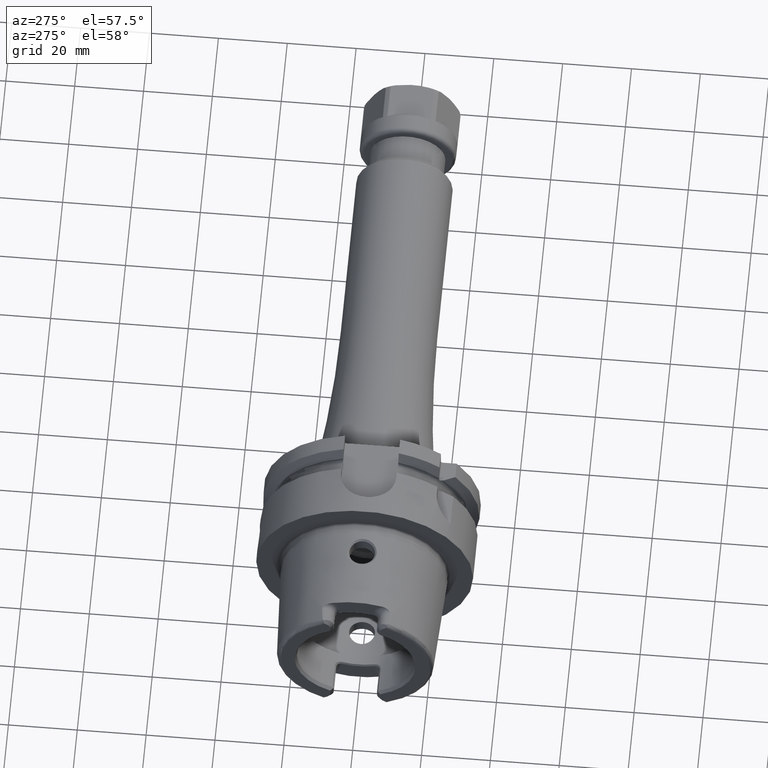
[diagram: clean part render]
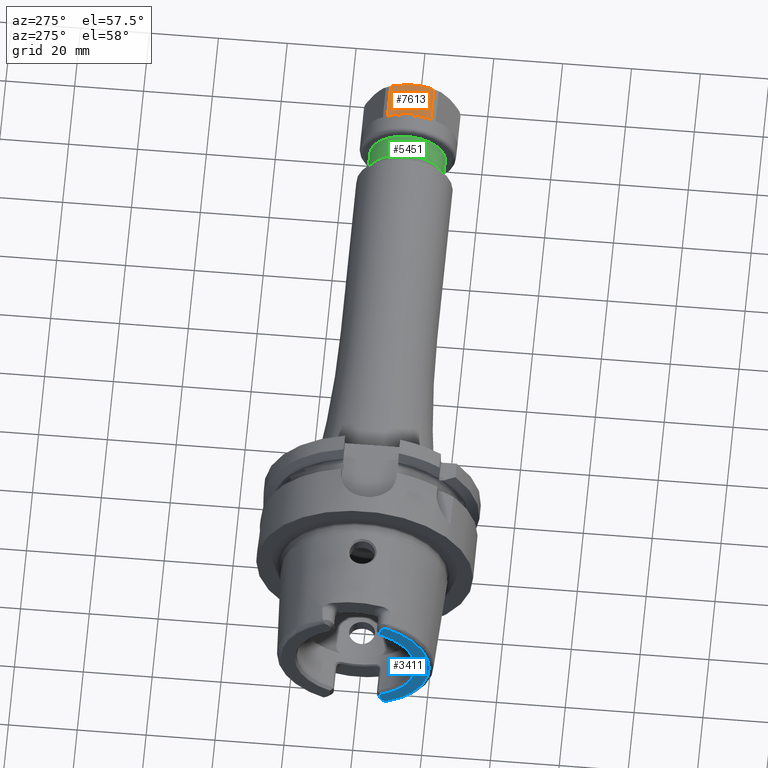
[diagram: same view with three faces highlighted in distinct colors, each labeled with its STEP entity id]
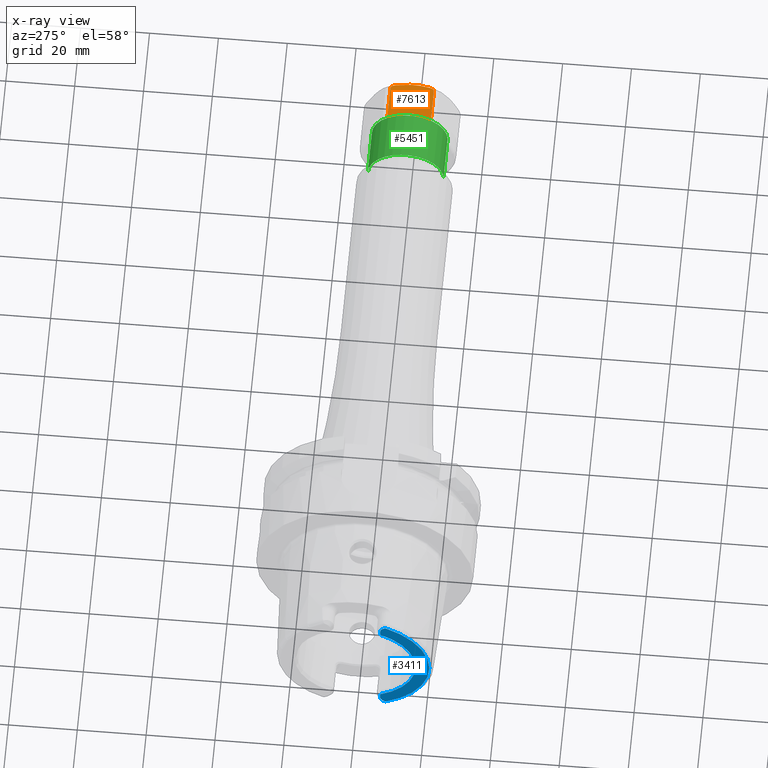
[diagram: x-ray of the same camera — body ghosted, the three highlighted faces saturated]
A machine part, auxiliary view with three faces highlighted in distinct colors.
The next image is the same camera in x-ray (body ghosted, the three faces saturated) — at least one of them is partly hidden behind the body in this view.
Their STEP definitions:

[orange] entity #7613 — the highlighted planar face has unit normal (0, 0, -1).
#6811=CARTESIAN_POINT('',(1.628445554338E1,-4.758216577669E0,1.25E1));
#6812=CARTESIAN_POINT('',(1.625780514735E1,-4.887968523483E0,1.25E1));
#6813=CARTESIAN_POINT('',(1.619635457926E1,-5.141602008187E0,1.25E1));
#6814=CARTESIAN_POINT('',(1.606561669937E1,-5.515629625230E0,1.25E1));
#6815=CARTESIAN_POINT('',(1.589737600801E1,-5.841380073054E0,1.25E1));
#6816=CARTESIAN_POINT('',(1.569295978880E1,-6.098496038599E0,1.25E1));
#6817=CARTESIAN_POINT('',(1.545738513995E1,-6.265053289239E0,1.25E1));
#6818=CARTESIAN_POINT('',(1.528945671766E1,-6.304760106459E0,1.25E1));
#6819=CARTESIAN_POINT('',(1.520192378865E1,-6.304760106459E0,1.25E1));
#6821=CARTESIAN_POINT('',(1.520192378865E1,6.304760106459E0,1.25E1));
#6822=CARTESIAN_POINT('',(1.529096662636E1,6.304760106459E0,1.25E1));
#6823=CARTESIAN_POINT('',(1.546146335283E1,6.263924243604E0,1.25E1));
#6824=CARTESIAN_POINT('',(1.570142638899E1,6.090799069305E0,1.25E1));
#6825=CARTESIAN_POINT('',(1.590512360841E1,5.828820593103E0,1.25E1));
#6826=CARTESIAN_POINT('',(1.607010427330E1,5.504238892291E0,1.25E1));
#6827=CARTESIAN_POINT('',(1.619774346523E1,5.136026796860E0,1.25E1));
#6828=CARTESIAN_POINT('',(1.625821277607E1,4.885983914320E0,1.25E1));
#6829=CARTESIAN_POINT('',(1.628445554338E1,4.758216577669E0,1.25E1));
#6964=CARTESIAN_POINT('',(1.628445554338E1,4.758216577669E0,1.25E1));
#6965=CARTESIAN_POINT('',(1.644888995402E1,3.957639929005E0,1.25E1));
#6966=CARTESIAN_POINT('',(1.670318968294E1,2.364269791047E0,1.25E1));
#6967=CARTESIAN_POINT('',(1.683288207547E1,-5.894560252867E-4,1.25E1));
#6968=CARTESIAN_POINT('',(1.670310415631E1,-2.364813039561E0,1.25E1));
#6969=CARTESIAN_POINT('',(1.644884551611E1,-3.957856282460E0,1.25E1));
#6970=CARTESIAN_POINT('',(1.628445554338E1,-4.758216577669E0,1.25E1));
#7092=CARTESIAN_POINT('',(6.999998791690E0,1.985136949503E-4,1.250497818744E1));
#7093=CARTESIAN_POINT('',(6.999995386559E0,1.083553461564E-1,1.250497818744E1));
#7094=CARTESIAN_POINT('',(7.011782444677E0,3.323389433546E-1,1.249768961517E1));
#7095=CARTESIAN_POINT('',(6.991282370716E0,6.947576581843E-1,1.250061906576E1));
#7096=CARTESIAN_POINT('',(6.965721899361E0,1.081326132470E0,1.249983412178E1));
#7097=CARTESIAN_POINT('',(6.922876192133E0,1.498035903408E0,1.250004444711E1));
#7098=CARTESIAN_POINT('',(6.861885981566E0,1.948281362830E0,1.249998808976E1));
#7099=CARTESIAN_POINT('',(6.778309802838E0,2.434572650865E0,1.250000319384E1));
#7100=CARTESIAN_POINT('',(6.667918248966E0,2.960298770043E0,1.249999913487E1));
#7101=CARTESIAN_POINT('',(6.525149902043E0,3.530593918696E0,1.250000026669E1));
#7102=CARTESIAN_POINT('',(6.344630001608E0,4.147368678958E0,1.249999979838E1));
#7103=CARTESIAN_POINT('',(6.120965968917E0,4.812010958299E0,1.250000053980E1));
#7104=CARTESIAN_POINT('',(5.848032343460E0,5.527653239183E0,1.249999804241E1));
#7105=CARTESIAN_POINT('',(5.629243339886E0,6.040163160491E0,1.250000420784E1));
#7106=CARTESIAN_POINT('',(5.510095954746E0,6.304759140730E0,1.250000420784E1));
#7108=DIRECTION('',(9.999999999999E-1,9.964366215769E-8,-4.341640402664E-7));
#7109=VECTOR('',#7108,9.691827833902E0);
#7110=CARTESIAN_POINT('',(5.510095954746E0,6.304759140730E0,1.250000420784E1));
#7111=LINE('',#7110,#7109);
#7112=DIRECTION('',(-1.E0,0.E0,0.E0));
#7113=VECTOR('',#7112,9.691824900384E0);
#7114=CARTESIAN_POINT('',(1.520192378865E1,-6.304760106459E0,1.25E1));
#7115=LINE('',#7114,#7113);
#7116=CARTESIAN_POINT('',(5.510098888263E0,-6.304760106459E0,1.25E1));
#7117=CARTESIAN_POINT('',(5.628608269067E0,-6.041581193405E0,1.25E1));
#7118=CARTESIAN_POINT('',(5.846410978598E0,-5.531542850544E0,1.249999999528E1));
#7119=CARTESIAN_POINT('',(6.118668645789E0,-4.818319414009E0,1.250000001653E1));
#7120=CARTESIAN_POINT('',(6.342154539409E0,-4.155168896739E0,1.249999993859E1));
#7121=CARTESIAN_POINT('',(6.522846521565E0,-3.539040019302E0,1.250000022912E1));
#7122=CARTESIAN_POINT('',(6.666026914419E0,-2.968541134184E0,1.249999914493E1));
#7123=CARTESIAN_POINT('',(6.776957979542E0,-2.441689317017E0,1.250000319115E1));
#7124=CARTESIAN_POINT('',(6.860833699321E0,-1.955099057778E0,1.249998809048E1));
#7125=CARTESIAN_POINT('',(6.922079179828E0,-1.504758646512E0,1.250004444692E1));
#7126=CARTESIAN_POINT('',(6.965227124505E0,-1.087199393790E0,1.249983412183E1));
#7127=CARTESIAN_POINT('',(6.991082238877E0,-6.988464250822E-1,
1.250061906575E1));
#7128=CARTESIAN_POINT('',(7.011784163695E0,-3.332410705653E-1,
1.249768961517E1));
#7129=CARTESIAN_POINT('',(7.000002200654E0,-1.080800986362E-1,
1.250497818744E1));
#7130=CARTESIAN_POINT('',(6.999998791690E0,1.985136949503E-4,1.250497818744E1));
#7179=VERTEX_POINT('',#6964);
#7180=VERTEX_POINT('',#6970);
#7191=VERTEX_POINT('',#6819);
#7192=VERTEX_POINT('',#6821);
#7221=CARTESIAN_POINT('',(5.510019594413E0,-6.304795814642E0,1.250007080131E1));
#7222=CARTESIAN_POINT('',(5.510019594413E0,6.304795289710E0,1.250006976046E1));
#7223=VERTEX_POINT('',#7221);
#7224=VERTEX_POINT('',#7222);
#7226=VERTEX_POINT('',#7130);
#7597=CARTESIAN_POINT('',(1.78E1,-7.216878364870E0,1.25E1));
#7598=DIRECTION('',(0.E0,0.E0,-1.E0));
#7599=DIRECTION('',(0.E0,1.E0,0.E0));
#7600=AXIS2_PLACEMENT_3D('',#7597,#7598,#7599);
#7601=PLANE('',#7600);
#7603=ORIENTED_EDGE('',*,*,#7602,.T.);
#7604=ORIENTED_EDGE('',*,*,#7548,.T.);
#7605=ORIENTED_EDGE('',*,*,#7404,.T.);
#7606=ORIENTED_EDGE('',*,*,#7497,.T.);
#7607=ORIENTED_EDGE('',*,*,#7392,.T.);
#7608=ORIENTED_EDGE('',*,*,#7552,.T.);
#7610=ORIENTED_EDGE('',*,*,#7609,.T.);
#7611=EDGE_LOOP('',(#7603,#7604,#7605,#7606,#7607,#7608,#7610));
#7612=FACE_OUTER_BOUND('',#7611,.F.);
#7613=ADVANCED_FACE('',(#7612),#7601,.F.);
#6820=B_SPLINE_CURVE_WITH_KNOTS('',3,(#6811,#6812,#6813,#6814,#6815,#6816,#6817,
#6818,#6819),.UNSPECIFIED.,.F.,.F.,(4,1,1,1,1,1,4),(0.E0,1.666666666667E-1,
3.333333333333E-1,5.E-1,6.666666666667E-1,8.333333333333E-1,1.E0),
.UNSPECIFIED.);
#6830=B_SPLINE_CURVE_WITH_KNOTS('',3,(#6821,#6822,#6823,#6824,#6825,#6826,#6827,
#6828,#6829),.UNSPECIFIED.,.F.,.F.,(4,1,1,1,1,1,4),(0.E0,1.666666666667E-1,
3.333333333333E-1,5.E-1,6.666666666667E-1,8.333333333333E-1,1.E0),
.UNSPECIFIED.);
#6971=B_SPLINE_CURVE_WITH_KNOTS('',3,(#6964,#6965,#6966,#6967,#6968,#6969,
#6970),.UNSPECIFIED.,.F.,.F.,(4,1,1,1,4),(0.E0,2.5E-1,5.E-1,7.5E-1,1.E0),
.UNSPECIFIED.);
#7107=B_SPLINE_CURVE_WITH_KNOTS('',3,(#7092,#7093,#7094,#7095,#7096,#7097,#7098,
#7099,#7100,#7101,#7102,#7103,#7104,#7105,#7106),.UNSPECIFIED.,.F.,.F.,(4,1,1,1,
1,1,1,1,1,1,1,1,4),(0.E0,8.333333333333E-2,1.666666666667E-1,2.5E-1,
3.333333333333E-1,4.166666666667E-1,5.E-1,5.833333333333E-1,6.666666666667E-1,
7.5E-1,8.333333333333E-1,9.166666666667E-1,1.E0),.UNSPECIFIED.);
#7131=B_SPLINE_CURVE_WITH_KNOTS('',3,(#7116,#7117,#7118,#7119,#7120,#7121,#7122,
#7123,#7124,#7125,#7126,#7127,#7128,#7129,#7130),.UNSPECIFIED.,.F.,.F.,(4,1,1,1,
1,1,1,1,1,1,1,1,4),(0.E0,8.333333333333E-2,1.666666666667E-1,2.5E-1,
3.333333333333E-1,4.166666666667E-1,5.E-1,5.833333333333E-1,6.666666666667E-1,
7.5E-1,8.333333333333E-1,9.166666666667E-1,1.E0),.UNSPECIFIED.);
#7392=EDGE_CURVE('',#7180,#7191,#6820,.T.);
#7404=EDGE_CURVE('',#7192,#7179,#6830,.T.);
#7497=EDGE_CURVE('',#7179,#7180,#6971,.T.);
#7548=EDGE_CURVE('',#7224,#7192,#7111,.T.);
#7552=EDGE_CURVE('',#7191,#7223,#7115,.T.);
#7602=EDGE_CURVE('',#7226,#7224,#7107,.T.);
#7609=EDGE_CURVE('',#7223,#7226,#7131,.T.);

[blue] entity #3411 — the highlighted planar face has unit normal (1, 0, 0).
#231=CARTESIAN_POINT('',(-3.2E1,0.E0,0.E0));
#232=DIRECTION('',(-1.E0,0.E0,0.E0));
#233=DIRECTION('',(0.E0,-4.056746540583E-1,-9.140175463604E-1));
#234=AXIS2_PLACEMENT_3D('',#231,#232,#233);
#315=DIRECTION('',(0.E0,0.E0,-1.E0));
#316=VECTOR('',#315,1.666552168805E0);
#317=CARTESIAN_POINT('',(-3.2E1,-7.27E0,-1.600344783120E1));
#318=LINE('',#317,#316);
#319=DIRECTION('',(0.E0,0.E0,1.E0));
#320=VECTOR('',#319,1.666552168805E0);
#321=CARTESIAN_POINT('',(-3.2E1,-7.27E0,1.600344783120E1));
#322=LINE('',#321,#320);
#323=CARTESIAN_POINT('',(-3.2E1,-9.27E0,1.767E1));
#324=DIRECTION('',(1.E0,0.E0,0.E0));
#325=DIRECTION('',(0.E0,1.E0,1.065814103640E-14));
#326=AXIS2_PLACEMENT_3D('',#323,#324,#325);
#328=DIRECTION('',(0.E0,8.373245684230E-1,-5.467061067112E-1));
#329=VECTOR('',#328,6.882400885957E-1);
#330=CARTESIAN_POINT('',(-3.2E1,-8.752868121732E0,1.972091419616E1));
#331=LINE('',#330,#329);
#332=DIRECTION('',(0.E0,8.373245684230E-1,5.467061067112E-1));
#333=VECTOR('',#332,6.882400885957E-1);
#334=CARTESIAN_POINT('',(-3.2E1,-8.752868121732E0,-1.972091419616E1));
#335=LINE('',#334,#333);
#336=CARTESIAN_POINT('',(-3.2E1,-9.27E0,-1.767E1));
#337=DIRECTION('',(-1.E0,0.E0,0.E0));
#338=DIRECTION('',(0.E0,1.E0,0.E0));
#339=AXIS2_PLACEMENT_3D('',#336,#337,#338);
#410=CARTESIAN_POINT('',(-3.2E1,0.E0,0.E0));
#411=DIRECTION('',(1.E0,0.E0,0.E0));
#412=DIRECTION('',(0.E0,-4.136004510727E-1,9.104584926686E-1));
#413=AXIS2_PLACEMENT_3D('',#410,#411,#412);
#2795=CARTESIAN_POINT('',(-3.2E1,-7.27E0,1.600344783120E1));
#2796=CARTESIAN_POINT('',(-3.2E1,-7.27E0,1.767E1));
#2797=VERTEX_POINT('',#2795);
#2798=VERTEX_POINT('',#2796);
#2799=CARTESIAN_POINT('',(-3.2E1,-8.176587786578E0,1.934464913685E1));
#2800=VERTEX_POINT('',#2799);
#2801=CARTESIAN_POINT('',(-3.2E1,-8.752868121732E0,1.972091419616E1));
#2802=VERTEX_POINT('',#2801);
#2892=CARTESIAN_POINT('',(-3.2E1,-7.27E0,-1.600344783120E1));
#2893=CARTESIAN_POINT('',(-3.2E1,-7.27E0,-1.767E1));
#2894=VERTEX_POINT('',#2892);
#2895=VERTEX_POINT('',#2893);
#2896=CARTESIAN_POINT('',(-3.2E1,-8.176587786578E0,-1.934464913685E1));
#2897=VERTEX_POINT('',#2896);
#2898=CARTESIAN_POINT('',(-3.2E1,-8.752868121732E0,-1.972091419616E1));
#2899=VERTEX_POINT('',#2898);
#3389=CARTESIAN_POINT('',(-3.2E1,0.E0,0.E0));
#3390=DIRECTION('',(1.E0,0.E0,0.E0));
#3391=DIRECTION('',(0.E0,-1.E0,0.E0));
#3392=AXIS2_PLACEMENT_3D('',#3389,#3390,#3391);
#3393=PLANE('',#3392);
#3395=ORIENTED_EDGE('',*,*,#3394,.F.);
#3397=ORIENTED_EDGE('',*,*,#3396,.F.);
#3399=ORIENTED_EDGE('',*,*,#3398,.T.);
#3401=ORIENTED_EDGE('',*,*,#3400,.T.);
#3403=ORIENTED_EDGE('',*,*,#3402,.F.);
#3404=ORIENTED_EDGE('',*,*,#3336,.F.);
#3406=ORIENTED_EDGE('',*,*,#3405,.T.);
#3408=ORIENTED_EDGE('',*,*,#3407,.F.);
#3409=EDGE_LOOP('',(#3395,#3397,#3399,#3401,#3403,#3404,#3406,#3408));
#3410=FACE_OUTER_BOUND('',#3409,.F.);
#3411=ADVANCED_FACE('',(#3410),#3393,.F.);
#235=CIRCLE('',#234,2.157607835286E1);
#327=CIRCLE('',#326,2.E0);
#340=CIRCLE('',#339,2.E0);
#414=CIRCLE('',#413,1.757735026919E1);
#3336=EDGE_CURVE('',#2899,#2802,#235,.T.);
#3394=EDGE_CURVE('',#2894,#2895,#318,.T.);
#3396=EDGE_CURVE('',#2797,#2894,#414,.T.);
#3398=EDGE_CURVE('',#2797,#2798,#322,.T.);
#3400=EDGE_CURVE('',#2798,#2800,#327,.T.);
#3402=EDGE_CURVE('',#2802,#2800,#331,.T.);
#3405=EDGE_CURVE('',#2899,#2897,#335,.T.);
#3407=EDGE_CURVE('',#2895,#2897,#340,.T.);

[green] entity #5451 — the highlighted cylindrical surface (partial cylindrical patch) has radius 11 mm, axis along (1, 0, 0).
#2067=DIRECTION('',(-1.E0,0.E0,2.789050259326E-14));
#2068=VECTOR('',#2067,1.358578643763E1);
#2069=CARTESIAN_POINT('',(1.494E2,-1.1E1,0.E0));
#2070=LINE('',#2069,#2068);
#2076=DIRECTION('',(-1.E0,0.E0,-2.818266741174E-14));
#2077=VECTOR('',#2076,1.358578643763E1);
#2078=CARTESIAN_POINT('',(1.494E2,1.1E1,0.E0));
#2079=LINE('',#2078,#2077);
#2080=CARTESIAN_POINT('',(1.358142135624E2,0.E0,0.E0));
#2081=DIRECTION('',(1.E0,0.E0,0.E0));
#2082=DIRECTION('',(0.E0,1.E0,0.E0));
#2083=AXIS2_PLACEMENT_3D('',#2080,#2081,#2082);
#2085=CARTESIAN_POINT('',(1.494E2,0.E0,0.E0));
#2086=DIRECTION('',(1.E0,0.E0,0.E0));
#2087=DIRECTION('',(0.E0,1.E0,0.E0));
#2088=AXIS2_PLACEMENT_3D('',#2085,#2086,#2087);
#3132=CARTESIAN_POINT('',(1.494E2,1.1E1,0.E0));
#3133=CARTESIAN_POINT('',(1.494E2,-1.1E1,0.E0));
#3134=VERTEX_POINT('',#3132);
#3135=VERTEX_POINT('',#3133);
#3140=CARTESIAN_POINT('',(1.358142135624E2,-1.1E1,0.E0));
#3141=CARTESIAN_POINT('',(1.358142135624E2,1.1E1,0.E0));
#3142=VERTEX_POINT('',#3140);
#3143=VERTEX_POINT('',#3141);
#5439=CARTESIAN_POINT('',(1.983E1,0.E0,0.E0));
#5440=DIRECTION('',(1.E0,0.E0,0.E0));
#5441=DIRECTION('',(0.E0,-1.E0,0.E0));
#5442=AXIS2_PLACEMENT_3D('',#5439,#5440,#5441);
#5443=CYLINDRICAL_SURFACE('',#5442,1.1E1);
#5444=ORIENTED_EDGE('',*,*,#5404,.F.);
#5445=ORIENTED_EDGE('',*,*,#5434,.F.);
#5447=ORIENTED_EDGE('',*,*,#5446,.T.);
#5448=ORIENTED_EDGE('',*,*,#5430,.T.);
#5449=EDGE_LOOP('',(#5444,#5445,#5447,#5448));
#5450=FACE_OUTER_BOUND('',#5449,.F.);
#5451=ADVANCED_FACE('',(#5450),#5443,.T.);
#2084=CIRCLE('',#2083,1.1E1);
#2089=CIRCLE('',#2088,1.1E1);
#5404=EDGE_CURVE('',#3143,#3142,#2084,.T.);
#5430=EDGE_CURVE('',#3135,#3142,#2070,.T.);
#5434=EDGE_CURVE('',#3134,#3143,#2079,.T.);
#5446=EDGE_CURVE('',#3134,#3135,#2089,.T.);